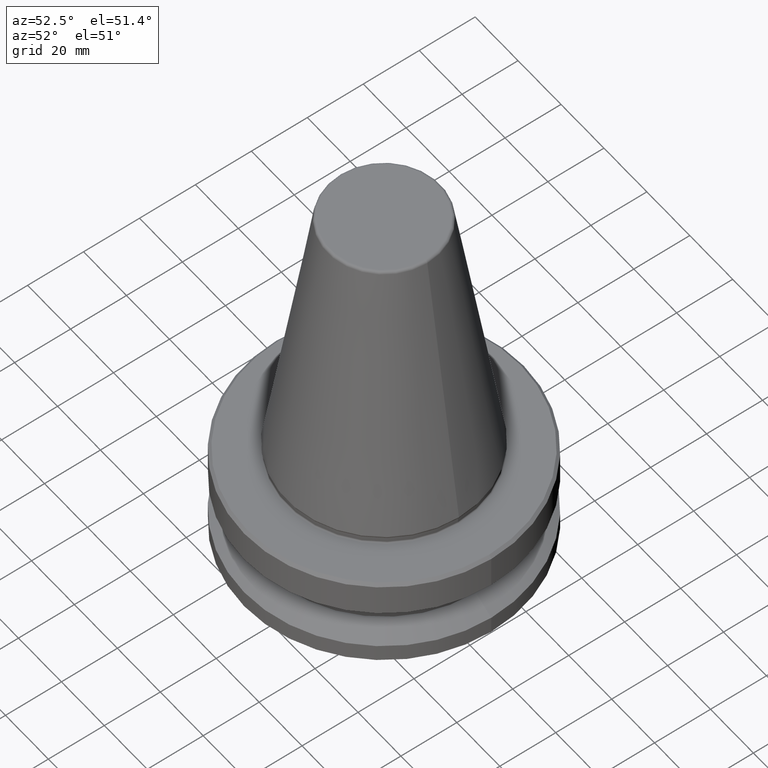
[diagram: clean part render]
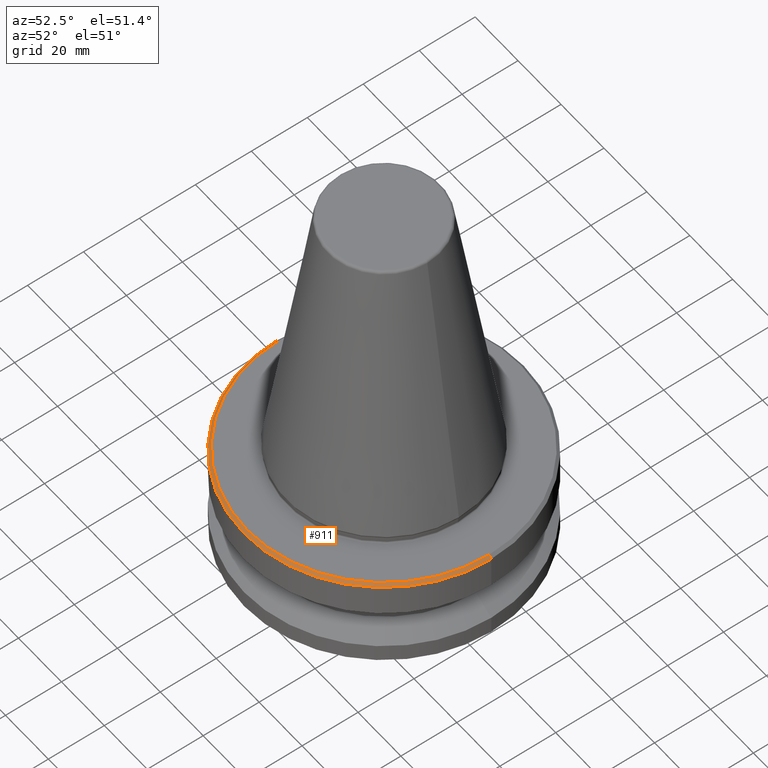
[diagram: same view with one face highlighted and labeled with its STEP entity id]
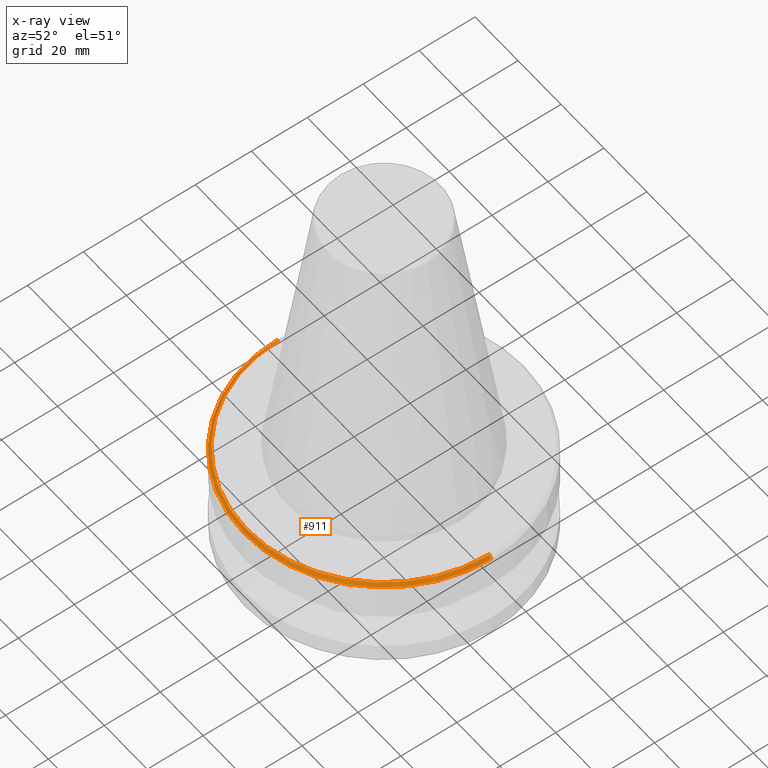
[diagram: x-ray of the same camera — body ghosted, the highlighted face saturated]
A machine part, auxiliary view. The second image highlights one B-rep face of the part: STEP entity #911.
The next image is the same camera in x-ray: the body ghosted, the highlighted face saturated — about 0% of this face is hidden behind the body in this view.
In plain terms, the highlighted conical surface has half-angle 45 deg.
Its self-contained STEP definition (entity closure, byte-faithful):
#39 = ORIENTED_EDGE ( 'NONE', *, *, #725, .T. ) ;
#62 = CARTESIAN_POINT ( 'NONE',  ( -50.00000000000027000, 6.123233995736798400E-015, -4.000000000001335800 ) ) ;
#66 = EDGE_CURVE ( 'NONE', #85, #360, #506, .T. ) ;
#85 = VERTEX_POINT ( 'NONE', #225 ) ;
#184 = AXIS2_PLACEMENT_3D ( 'NONE', #670, #200, #742 ) ;
#193 = CARTESIAN_POINT ( 'NONE',  ( 50.00000000000027000, 0.0000000000000000000, -4.000000000001335800 ) ) ;
#200 = DIRECTION ( 'NONE',  ( -0.0000000000000000000, -0.0000000000000000000, 1.000000000000000000 ) ) ;
#225 = CARTESIAN_POINT ( 'NONE',  ( 49.00000000000015600, 6.062001655779424500E-015, -3.000000000001223900 ) ) ;
#278 = VECTOR ( 'NONE', #992, 1000.000000000000000 ) ;
#312 = ORIENTED_EDGE ( 'NONE', *, *, #419, .T. ) ;
#320 = VECTOR ( 'NONE', #372, 1000.000000000000000 ) ;
#359 = DIRECTION ( 'NONE',  ( -0.0000000000000000000, -0.0000000000000000000, 1.000000000000000000 ) ) ;
#360 = VERTEX_POINT ( 'NONE', #193 ) ;
#372 = DIRECTION ( 'NONE',  ( -0.7071067811865474600, 0.0000000000000000000, -0.7071067811865475700 ) ) ;
#419 = EDGE_CURVE ( 'NONE', #663, #572, #840, .T. ) ;
#443 = EDGE_LOOP ( 'NONE', ( #583, #560, #312, #39 ) ) ;
#446 = CARTESIAN_POINT ( 'NONE',  ( 50.00000000000027000, 6.123233995736798400E-015, -4.000000000001335800 ) ) ;
#506 = LINE ( 'NONE', #446, #278 ) ;
#514 = AXIS2_PLACEMENT_3D ( 'NONE', #884, #895, #765 ) ;
#560 = ORIENTED_EDGE ( 'NONE', *, *, #700, .F. ) ;
#572 = VERTEX_POINT ( 'NONE', #62 ) ;
#583 = ORIENTED_EDGE ( 'NONE', *, *, #66, .F. ) ;
#604 = CARTESIAN_POINT ( 'NONE',  ( -49.00000000000015600, 0.0000000000000000000, -3.000000000001223900 ) ) ;
#663 = VERTEX_POINT ( 'NONE', #604 ) ;
#670 = CARTESIAN_POINT ( 'NONE',  ( 0.0000000000000000000, 0.0000000000000000000, -3.000000000001223900 ) ) ;
#700 = EDGE_CURVE ( 'NONE', #663, #85, #763, .T. ) ;
#725 = EDGE_CURVE ( 'NONE', #572, #360, #986, .T. ) ;
#734 = AXIS2_PLACEMENT_3D ( 'NONE', #821, #359, #909 ) ;
#742 = DIRECTION ( 'NONE',  ( 1.000000000000000000, 0.0000000000000000000, 0.0000000000000000000 ) ) ;
#747 = CONICAL_SURFACE ( 'NONE', #514, 50.00000000000027000, 0.7853981633974482800 ) ;
#763 = CIRCLE ( 'NONE', #184, 49.00000000000015600 ) ;
#765 = DIRECTION ( 'NONE',  ( -1.000000000000000000, 0.0000000000000000000, 0.0000000000000000000 ) ) ;
#821 = CARTESIAN_POINT ( 'NONE',  ( 0.0000000000000000000, 0.0000000000000000000, -4.000000000001335800 ) ) ;
#839 = CARTESIAN_POINT ( 'NONE',  ( -50.00000000000027000, 0.0000000000000000000, -4.000000000001335800 ) ) ;
#840 = LINE ( 'NONE', #839, #320 ) ;
#884 = CARTESIAN_POINT ( 'NONE',  ( 0.0000000000000000000, 0.0000000000000000000, -4.000000000001335800 ) ) ;
#895 = DIRECTION ( 'NONE',  ( 0.0000000000000000000, 0.0000000000000000000, -1.000000000000000000 ) ) ;
#909 = DIRECTION ( 'NONE',  ( 1.000000000000000000, 0.0000000000000000000, 0.0000000000000000000 ) ) ;
#911 = ADVANCED_FACE ( 'NONE', ( #936 ), #747, .T. ) ;
#936 = FACE_OUTER_BOUND ( 'NONE', #443, .T. ) ;
#986 = CIRCLE ( 'NONE', #734, 50.00000000000027000 ) ;
#992 = DIRECTION ( 'NONE',  ( 0.7071067811865474600, 8.659560562354931600E-017, -0.7071067811865475700 ) ) ;